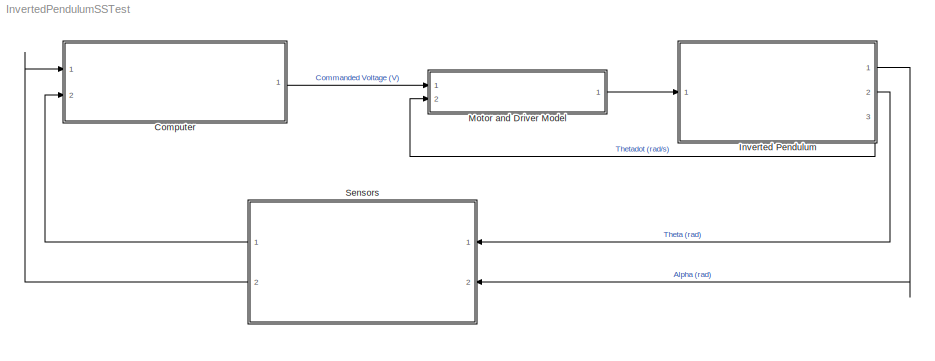
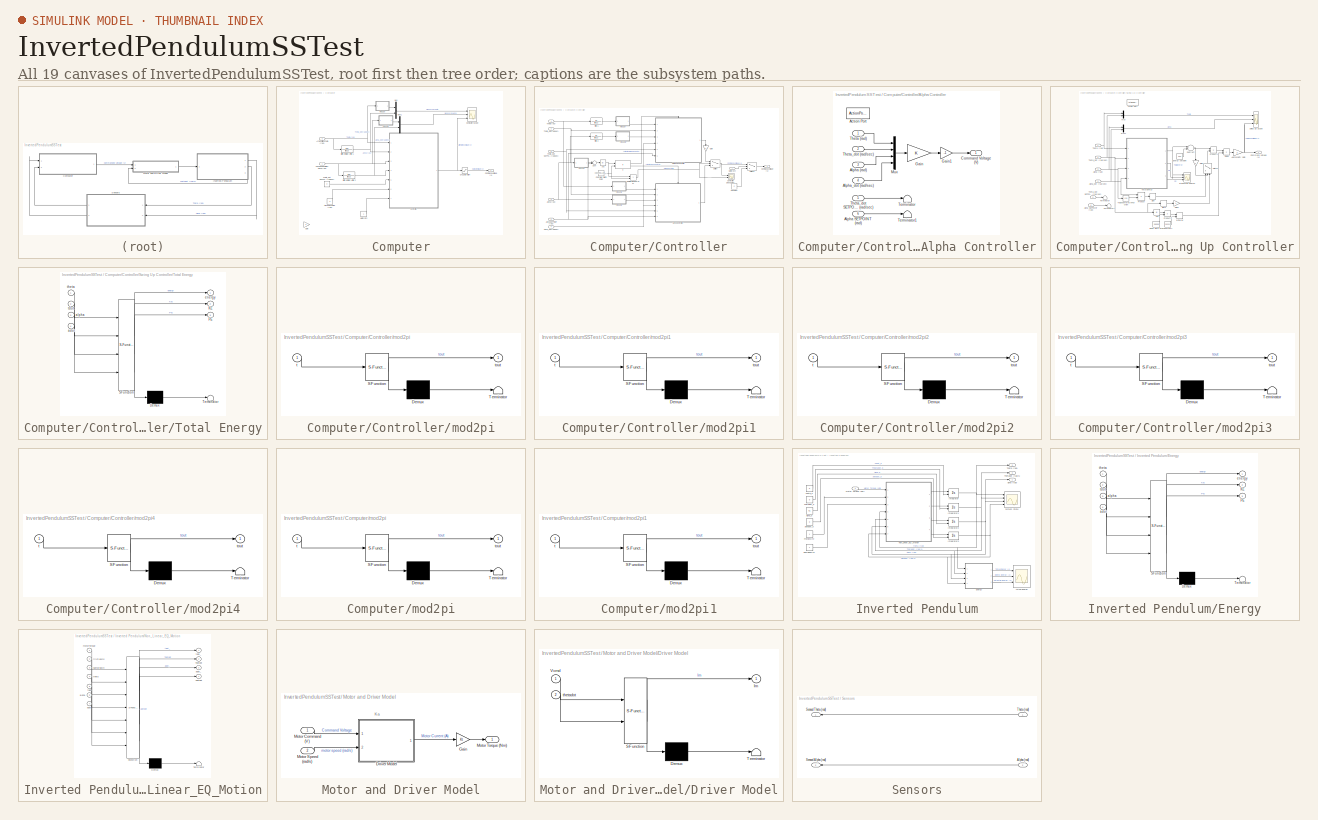
[diagram: thumbnail index - all 19 canvases of the model, root first then tree order]
MODEL InvertedPendulumSSTest
KIND model
CONFIG PreLoadFcn = StateSpacePrelimv2
BLOCK [SubSystem] Computer
  FunctionWithSeparateData = off
  MaskHideContents = off
  MinAlgLoopOccurrences = off
  Opaque = off
  Ports = [2, 1]
  PropExecContextOutsideSubsystem = off
  RTWSystemCode = Auto
  RequestExecContextInheritance = off
  SID = 1
BLOCK [Constant] Computer/Alpha SETPOINT (rad)
  SID = 41
  Value = 0
BLOCK [Inport] Computer/Arm Position// Theta (rad)
  IconDisplay = Port number
  Port = 2
  SID = 2
BLOCK [Outport] Computer/Command Voltage (V)
  IconDisplay = Port number
  SID = 3
BLOCK [Scope] Computer/Computer Scope
  DataFormat = StructureWithTime
  Floating = off
  LimitDataPoints = off
  NumInputPorts = 3
  Ports = [3]
  SID = 172
  SampleTime = 0
  SaveName = ScopeData3
  YMax = 17.5~325~900000
  YMin = -10~-25~-800000
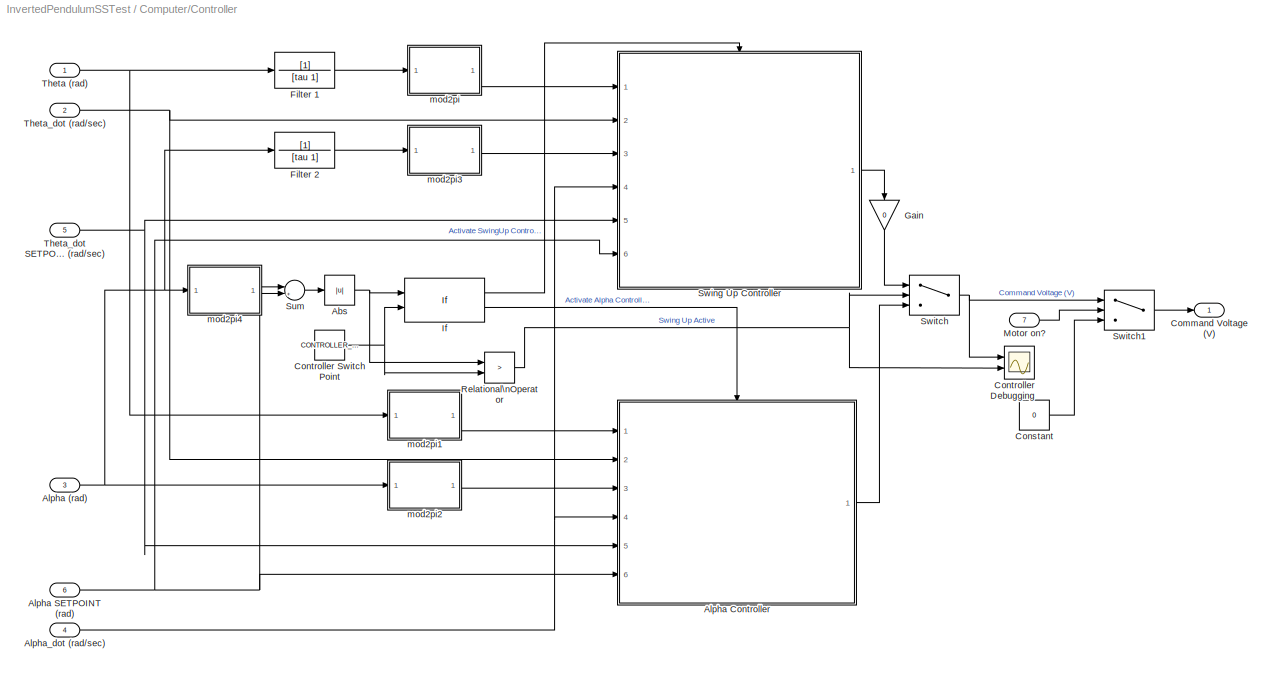
BLOCK [SubSystem] Computer/Controller
  FunctionWithSeparateData = off
  MaskHideContents = off
  MinAlgLoopOccurrences = off
  Opaque = off
  Ports = [7, 1]
  PropExecContextOutsideSubsystem = off
  RTWSystemCode = Auto
  RequestExecContextInheritance = off
  SID = 29
BLOCK [Abs] Computer/Controller/Abs
  SID = 299
  SaturateOnIntegerOverflow = off
BLOCK [Inport] Computer/Controller/Alpha (rad)
  IconDisplay = Port number
  Port = 3
  SID = 33
BLOCK [SubSystem] Computer/Controller/Alpha Controller
  FunctionWithSeparateData = off
  MaskHideContents = off
  MinAlgLoopOccurrences = off
  Opaque = off
  Ports = [6, 1, 0, 0, 0, 0, 0, 1]
  PropExecContextOutsideSubsystem = off
  RTWSystemCode = Auto
  RequestExecContextInheritance = off
  SID = 54
  TreatAsAtomicUnit = on
BLOCK [ActionPort] Computer/Controller/Alpha Controller/Action Port
  ActionType = else
  SID = 56
BLOCK [Inport] Computer/Controller/Alpha Controller/Alpha (rad)
  IconDisplay = Port number
  Port = 3
  SID = 73
BLOCK [Inport] Computer/Controller/Alpha Controller/Alpha SETPOINT (rad)
  IconDisplay = Port number
  Port = 6
  SID = 76
BLOCK [Inport] Computer/Controller/Alpha Controller/Alpha_dot (rad//sec)
  IconDisplay = Port number
  Port = 4
  SID = 74
BLOCK [Outport] Computer/Controller/Alpha Controller/Command Voltage (V)
  IconDisplay = Port number
  SID = 77
BLOCK [Gain] Computer/Controller/Alpha Controller/Gain
  Gain = K
  Multiplication = Matrix(K*u)
  OutDataTypeStr = Inherit: Inherit via internal rule
  ParamDataTypeStr = Inherit: Inherit via internal rule
  SID = 155
  SaturateOnIntegerOverflow = off
BLOCK [Gain] Computer/Controller/Alpha Controller/Gain1
  Gain = -1
  OutDataTypeStr = Inherit: Inherit via internal rule
  ParamDataTypeStr = Inherit: Inherit via internal rule
  SID = 156
  SaturateOnIntegerOverflow = off
BLOCK [Mux] Computer/Controller/Alpha Controller/Mux
  Ports = [4, 1]
  SID = 154
BLOCK [Terminator] Computer/Controller/Alpha Controller/Terminator
  SID = 191
BLOCK [Terminator] Computer/Controller/Alpha Controller/Terminator1
  SID = 192
BLOCK [Inport] Computer/Controller/Alpha Controller/Theta (rad)
  IconDisplay = Port number
  SID = 71
BLOCK [Inport] Computer/Controller/Alpha Controller/Theta_dot (rad//sec)
  IconDisplay = Port number
  Port = 2
  SID = 72
BLOCK [Inport] Computer/Controller/Alpha Controller/Theta_dot SETPOINT (rad//sec)
  IconDisplay = Port number
  Port = 5
  SID = 75
BLOCK [Inport] Computer/Controller/Alpha SETPOINT (rad)
  IconDisplay = Port number
  Port = 6
  SID = 39
BLOCK [Inport] Computer/Controller/Alpha_dot (rad//sec)
  IconDisplay = Port number
  Port = 4
  SID = 34
BLOCK [Outport] Computer/Controller/Command Voltage (V)
  IconDisplay = Port number
  SID = 31
BLOCK [Constant] Computer/Controller/Constant
  SID = 219
  Value = 0
BLOCK [Scope] Computer/Controller/Controller Debugging
  DataFormat = StructureWithTime
  Floating = off
  LimitDataPoints = off
  NumInputPorts = 2
  Ports = [2]
  SID = 198
  SampleTime = 0
  SaveName = ScopeData2
  YMax = 5~5
  YMin = -5~-5
BLOCK [Constant] Computer/Controller/Controller Switch Point
  SID = 87
  Value = CONTROLLER_SWITCH_POINT
BLOCK [TransferFcn] Computer/Controller/Filter 1
  Denominator = [tau 1]
  SID = 272
BLOCK [TransferFcn] Computer/Controller/Filter 2
  Denominator = [tau 1]
  SID = 273
BLOCK [Gain] Computer/Controller/Gain
  Gain = 0
  OutDataTypeStr = Inherit: Inherit via internal rule
  ParamDataTypeStr = Inherit: Inherit via internal rule
  SID = 302
  SaturateOnIntegerOverflow = off
BLOCK [If] Computer/Controller/If
  IfExpression = u1 > u2
  NumInputs = 2
  Ports = [2, 2]
  SID = 53
BLOCK [Inport] Computer/Controller/Motor on?
  IconDisplay = Port number
  Port = 7
  SID = 218
BLOCK [RelationalOperator] Computer/Controller/Relational\nOperator
  InputSameDT = off
  Operator = >
  OutDataTypeStr = boolean
  Ports = [2, 1]
  SID = 197
BLOCK [Sum] Computer/Controller/Sum
  IconShape = round
  InputSameDT = off
  Inputs = |+-
  OutDataTypeStr = Inherit: Inherit via internal rule
  Ports = [2, 1]
  SID = 88
  SaturateOnIntegerOverflow = off
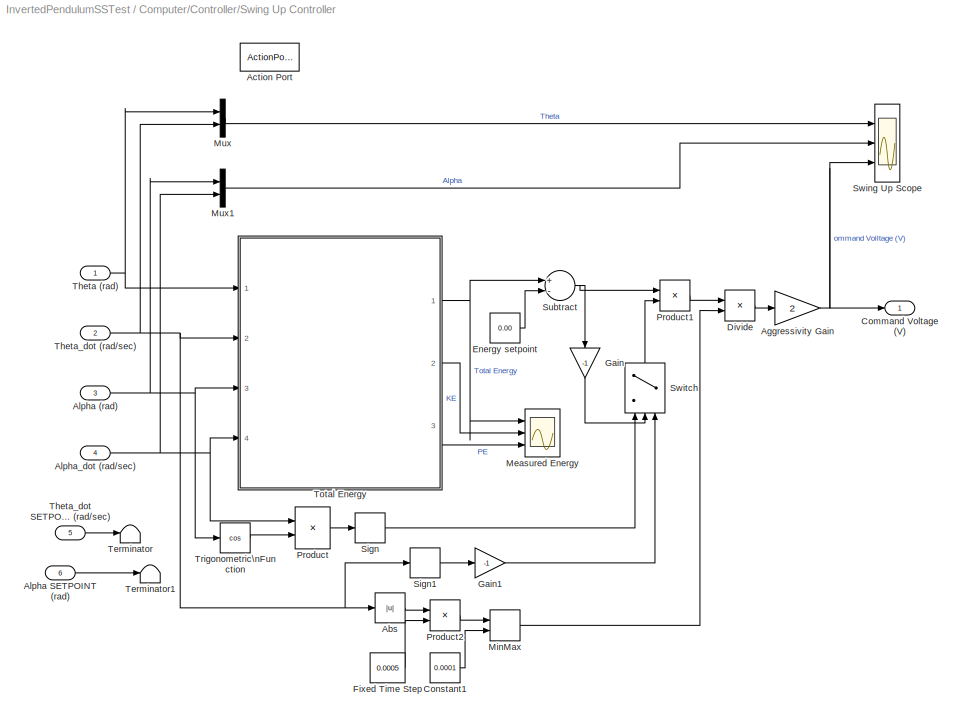
BLOCK [SubSystem] Computer/Controller/Swing Up Controller
  FunctionWithSeparateData = off
  MaskHideContents = off
  MinAlgLoopOccurrences = off
  Opaque = off
  Ports = [6, 1, 0, 0, 0, 0, 0, 1]
  PropExecContextOutsideSubsystem = off
  RTWSystemCode = Auto
  RequestExecContextInheritance = off
  SID = 78
  TreatAsAtomicUnit = on
BLOCK [Abs] Computer/Controller/Swing Up Controller/Abs
  SID = 223
  SaturateOnIntegerOverflow = off
BLOCK [ActionPort] Computer/Controller/Swing Up Controller/Action Port
  ActionType = then
  SID = 85
BLOCK [Gain] Computer/Controller/Swing Up Controller/Aggressivity Gain
  Gain = 2
  OutDataTypeStr = Inherit: Inherit via internal rule
  ParamDataTypeStr = Inherit: Inherit via internal rule
  SID = 164
  SaturateOnIntegerOverflow = off
BLOCK [Inport] Computer/Controller/Swing Up Controller/Alpha (rad)
  IconDisplay = Port number
  Port = 3
  SID = 81
BLOCK [Inport] Computer/Controller/Swing Up Controller/Alpha SETPOINT (rad)
  IconDisplay = Port number
  Port = 6
  SID = 84
BLOCK [Inport] Computer/Controller/Swing Up Controller/Alpha_dot (rad//sec)
  IconDisplay = Port number
  Port = 4
  SID = 82
BLOCK [Outport] Computer/Controller/Swing Up Controller/Command Voltage (V)
  IconDisplay = Port number
  SID = 86
BLOCK [Constant] Computer/Controller/Swing Up Controller/Constant1
  SID = 227
  Value = 0.0001
BLOCK [Product] Computer/Controller/Swing Up Controller/Divide
  InputSameDT = off
  Inputs = */
  OutDataTypeStr = Inherit: Inherit via internal rule
  Ports = [2, 1]
  RndMeth = Floor
  SID = 229
  SaturateOnIntegerOverflow = off
BLOCK [Constant] Computer/Controller/Swing Up Controller/Energy setpoint
  SID = 158
  Value = 0.00
BLOCK [Constant] Computer/Controller/Swing Up Controller/Fixed Time Step
  SID = 225
  Value = 0.0005
BLOCK [Gain] Computer/Controller/Swing Up Controller/Gain
  Gain = -1
  OutDataTypeStr = Inherit: Inherit via internal rule
  ParamDataTypeStr = Inherit: Inherit via internal rule
  SID = 295
  SaturateOnIntegerOverflow = off
BLOCK [Gain] Computer/Controller/Swing Up Controller/Gain1
  Gain = -1
  OutDataTypeStr = Inherit: Inherit via internal rule
  ParamDataTypeStr = Inherit: Inherit via internal rule
  SID = 297
  SaturateOnIntegerOverflow = off
BLOCK [Scope] Computer/Controller/Swing Up Controller/Measured Energy
  DataFormat = StructureWithTime
  Floating = off
  NumInputPorts = 3
  Ports = [3]
  SID = 215
  SampleTime = 0
  SaveName = Measured_Energy
  TimeRange = 10
  YMax = -0.035~0.1~-0.02000000000000002
  YMin = -0.065~0~-0.14
BLOCK [MinMax] Computer/Controller/Swing Up Controller/MinMax
  Function = max
  InputSameDT = off
  Inputs = 2
  Ports = [2, 1]
  SID = 226
  SaturateOnIntegerOverflow = off
BLOCK [Mux] Computer/Controller/Swing Up Controller/Mux
  DisplayOption = bar
  Inputs = 2
  Ports = [2, 1]
  SID = 186
BLOCK [Mux] Computer/Controller/Swing Up Controller/Mux1
  DisplayOption = bar
  Inputs = 2
  Ports = [2, 1]
  SID = 187
BLOCK [Product] Computer/Controller/Swing Up Controller/Product
  InputSameDT = off
  OutDataTypeStr = Inherit: Inherit via internal rule
  Ports = [2, 1]
  SID = 163
  SaturateOnIntegerOverflow = off
BLOCK [Product] Computer/Controller/Swing Up Controller/Product1
  InputSameDT = off
  OutDataTypeStr = Inherit: Inherit via internal rule
  Ports = [2, 1]
  SID = 167
  SaturateOnIntegerOverflow = off
BLOCK [Product] Computer/Controller/Swing Up Controller/Product2
  InputSameDT = off
  OutDataTypeStr = Inherit: Inherit via internal rule
  Ports = [2, 1]
  SID = 224
  SaturateOnIntegerOverflow = off
BLOCK [Signum] Computer/Controller/Swing Up Controller/Sign
  SID = 161
BLOCK [Signum] Computer/Controller/Swing Up Controller/Sign1
  SID = 296
BLOCK [Sum] Computer/Controller/Swing Up Controller/Subtract
  InputSameDT = off
  Inputs = +-
  OutDataTypeStr = Inherit: Inherit via internal rule
  Ports = [2, 1]
  SID = 165
  SaturateOnIntegerOverflow = off
BLOCK [Scope] Computer/Controller/Swing Up Controller/Swing Up Scope
  DataFormat = StructureWithTime
  Floating = off
  LimitDataPoints = off
  NumInputPorts = 3
  Ports = [3]
  SID = 173
  SampleTime = 0
  SaveName = ScopeData4
  TimeRange = 5
  YMax = 5~4~15
  YMin = -15~-4~-15
BLOCK [Switch] Computer/Controller/Swing Up Controller/Switch
  Criteria = u2 > Threshold
  InputSameDT = off
  SID = 293
  SaturateOnIntegerOverflow = off
BLOCK [Terminator] Computer/Controller/Swing Up Controller/Terminator
  SID = 193
BLOCK [Terminator] Computer/Controller/Swing Up Controller/Terminator1
  SID = 194
BLOCK [Inport] Computer/Controller/Swing Up Controller/Theta (rad)
  IconDisplay = Port number
  SID = 79
BLOCK [Inport] Computer/Controller/Swing Up Controller/Theta_dot (rad//sec)
  IconDisplay = Port number
  Port = 2
  SID = 80
BLOCK [Inport] Computer/Controller/Swing Up Controller/Theta_dot SETPOINT (rad//sec)
  IconDisplay = Port number
  Port = 5
  SID = 83
BLOCK [SubSystem] Computer/Controller/Swing Up Controller/Total Energy
  ErrorFcn = Stateflow.Translate.translate
  FunctionWithSeparateData = off
  MaskDescription = Embedded MATLAB block
  MaskDisplay = bgColor = Simulink.Root.ColorString2Rgb(get_param(gcbh, 'BackgroundColor')); image(imread('private/eml_membrane_16.png','png','BackgroundColor',bgColor(1:3)),'center'); disp([10 10 'totalEnergy']);
  MaskHideContents = off
  MaskIconFrame = on
  MaskIconOpaque = off
  MaskIconRotate = none
  MaskIconUnits = normalized
  MaskPortRotate = default
  MaskSelfModifiable = on
  MaskType = Stateflow
  MinAlgLoopOccurrences = off
  Opaque = off
  PermitHierarchicalResolution = ExplicitOnly
  Ports = [4, 3]
  PropExecContextOutsideSubsystem = off
  RTWSystemCode = Auto
  RequestExecContextInheritance = off
  SID = 160
  TreatAsAtomicUnit = on
BLOCK [Demux] Computer/Controller/Swing Up Controller/Total Energy/ Demux 
  Outputs = 1
  Ports = [1, 1]
  SID = 160::15
BLOCK [S-Function] Computer/Controller/Swing Up Controller/Total Energy/ SFunction 
  EnableBusSupport = on
  FunctionName = sf_sfun
  Parameters = I1zt,Ix2,Ixz2,Iy2,Iz2,g,l1,l2c,m2
  PortCounts = [4 4]
  Ports = [4, 4]
  SID = 160::14
  Tag = Stateflow S-Function InvertedPendulumSSTest 3
BLOCK [Terminator] Computer/Controller/Swing Up Controller/Total Energy/ Terminator 
  SID = 160::17
BLOCK [Outport] Computer/Controller/Swing Up Controller/Total Energy/KE
  IconDisplay = Port number
  Port = 2
  SID = 160::35
BLOCK [Outport] Computer/Controller/Swing Up Controller/Total Energy/PE
  IconDisplay = Port number
  Port = 3
  SID = 160::36
BLOCK [Inport] Computer/Controller/Swing Up Controller/Total Energy/adot
  IconDisplay = Port number
  Port = 4
  SID = 160::21
BLOCK [Inport] Computer/Controller/Swing Up Controller/Total Energy/alpha
  IconDisplay = Port number
  Port = 3
  SID = 160::20
BLOCK [Outport] Computer/Controller/Swing Up Controller/Total Energy/energy
  IconDisplay = Port number
  SID = 160::5
BLOCK [Inport] Computer/Controller/Swing Up Controller/Total Energy/tdot
  IconDisplay = Port number
  Port = 2
  SID = 160::19
BLOCK [Inport] Computer/Controller/Swing Up Controller/Total Energy/theta
  IconDisplay = Port number
  SID = 160::25
BLOCK [Trigonometry] Computer/Controller/Swing Up Controller/Trigonometric\nFunction
  Operator = cos
  Ports = [1, 1]
  SID = 162
BLOCK [Switch] Computer/Controller/Switch
  Criteria = u2 > Threshold
  InputSameDT = off
  SID = 195
  SaturateOnIntegerOverflow = off
BLOCK [Switch] Computer/Controller/Switch1
  Criteria = u2 > Threshold
  InputSameDT = off
  SID = 217
  SaturateOnIntegerOverflow = off
BLOCK [Inport] Computer/Controller/Theta (rad)
  IconDisplay = Port number
  SID = 30
BLOCK [Inport] Computer/Controller/Theta_dot (rad//sec)
  IconDisplay = Port number
  Port = 2
  SID = 32
BLOCK [Inport] Computer/Controller/Theta_dot SETPOINT (rad//sec)
  IconDisplay = Port number
  Port = 5
  SID = 38
BLOCK [SubSystem] Computer/Controller/mod2pi
  ErrorFcn = Stateflow.Translate.translate
  FunctionWithSeparateData = off
  MaskDescription = Embedded MATLAB block
  MaskDisplay = bgColor = Simulink.Root.ColorString2Rgb(get_param(gcbh, 'BackgroundColor')); image(imread('private/eml_membrane_16.png','png','BackgroundColor',bgColor(1:3)),'center'); disp([10 10 'mod2pi']);  <repeated x7 — deduplicated; at blocks: mod2pi, mod2pi1, mod2pi2, mod2pi3, mod2pi4>
  MaskHideContents = off
  MaskIconFrame = on
  MaskIconOpaque = off
  MaskIconRotate = none
  MaskIconUnits = normalized
  MaskPortRotate = default
  MaskSelfModifiable = on
  MaskType = Stateflow
  MinAlgLoopOccurrences = off
  Opaque = off
  PermitHierarchicalResolution = ExplicitOnly
  Ports = [1, 1]
  PropExecContextOutsideSubsystem = off
  RTWSystemCode = Auto
  RequestExecContextInheritance = off
  SID = 268
  TreatAsAtomicUnit = on
BLOCK [Demux] Computer/Controller/mod2pi/ Demux 
  Outputs = 1
  Ports = [1, 1]
  SID = 268::15
BLOCK [S-Function] Computer/Controller/mod2pi/ SFunction 
  EnableBusSupport = on
  FunctionName = sf_sfun
  PortCounts = [1 2]
  Ports = [1, 2]
  SID = 268::14
  Tag = Stateflow S-Function InvertedPendulumSSTest 7
BLOCK [Terminator] Computer/Controller/mod2pi/ Terminator 
  SID = 268::17
BLOCK [Inport] Computer/Controller/mod2pi/t
  IconDisplay = Port number
  SID = 268::1
BLOCK [Outport] Computer/Controller/mod2pi/tout
  IconDisplay = Port number
  SID = 268::5
BLOCK [SubSystem] Computer/Controller/mod2pi1
  ErrorFcn = Stateflow.Translate.translate
  FunctionWithSeparateData = off
  MaskDescription = Embedded MATLAB block
  MaskHideContents = off
  MaskIconFrame = on
  MaskIconOpaque = off
  MaskIconRotate = none
  MaskIconUnits = normalized
  MaskPortRotate = default
  MaskSelfModifiable = on
  MaskType = Stateflow
  MinAlgLoopOccurrences = off
  Opaque = off
  PermitHierarchicalResolution = ExplicitOnly
  Ports = [1, 1]
  PropExecContextOutsideSubsystem = off
  RTWSystemCode = Auto
  RequestExecContextInheritance = off
  SID = 269
  TreatAsAtomicUnit = on
BLOCK [Demux] Computer/Controller/mod2pi1/ Demux 
  Outputs = 1
  Ports = [1, 1]
  SID = 269::15
BLOCK [S-Function] Computer/Controller/mod2pi1/ SFunction 
  EnableBusSupport = on
  FunctionName = sf_sfun
  PortCounts = [1 2]
  Ports = [1, 2]
  SID = 269::14
  Tag = Stateflow S-Function InvertedPendulumSSTest 5
BLOCK [Terminator] Computer/Controller/mod2pi1/ Terminator 
  SID = 269::17
BLOCK [Inport] Computer/Controller/mod2pi1/t
  IconDisplay = Port number
  SID = 269::1
BLOCK [Outport] Computer/Controller/mod2pi1/tout
  IconDisplay = Port number
  SID = 269::5
BLOCK [SubSystem] Computer/Controller/mod2pi2
  ErrorFcn = Stateflow.Translate.translate
  FunctionWithSeparateData = off
  MaskDescription = Embedded MATLAB block
  MaskHideContents = off
  MaskIconFrame = on
  MaskIconOpaque = off
  MaskIconRotate = none
  MaskIconUnits = normalized
  MaskPortRotate = default
  MaskSelfModifiable = on
  MaskType = Stateflow
  MinAlgLoopOccurrences = off
  Opaque = off
  PermitHierarchicalResolution = ExplicitOnly
  Ports = [1, 1]
  PropExecContextOutsideSubsystem = off
  RTWSystemCode = Auto
  RequestExecContextInheritance = off
  SID = 270
  TreatAsAtomicUnit = on
BLOCK [Demux] Computer/Controller/mod2pi2/ Demux 
  Outputs = 1
  Ports = [1, 1]
  SID = 270::15
BLOCK [S-Function] Computer/Controller/mod2pi2/ SFunction 
  EnableBusSupport = on
  FunctionName = sf_sfun
  PortCounts = [1 2]
  Ports = [1, 2]
  SID = 270::14
  Tag = Stateflow S-Function InvertedPendulumSSTest 6
BLOCK [Terminator] Computer/Controller/mod2pi2/ Terminator 
  SID = 270::17
BLOCK [Inport] Computer/Controller/mod2pi2/t
  IconDisplay = Port number
  SID = 270::1
BLOCK [Outport] Computer/Controller/mod2pi2/tout
  IconDisplay = Port number
  SID = 270::5
BLOCK [SubSystem] Computer/Controller/mod2pi3
  ErrorFcn = Stateflow.Translate.translate
  FunctionWithSeparateData = off
  MaskDescription = Embedded MATLAB block
  MaskHideContents = off
  MaskIconFrame = on
  MaskIconOpaque = off
  MaskIconRotate = none
  MaskIconUnits = normalized
  MaskPortRotate = default
  MaskSelfModifiable = on
  MaskType = Stateflow
  MinAlgLoopOccurrences = off
  Opaque = off
  PermitHierarchicalResolution = ExplicitOnly
  Ports = [1, 1]
  PropExecContextOutsideSubsystem = off
  RTWSystemCode = Auto
  RequestExecContextInheritance = off
  SID = 271
  TreatAsAtomicUnit = on
BLOCK [Demux] Computer/Controller/mod2pi3/ Demux 
  Outputs = 1
  Ports = [1, 1]
  SID = 271::15
BLOCK [S-Function] Computer/Controller/mod2pi3/ SFunction 
  EnableBusSupport = on
  FunctionName = sf_sfun
  PortCounts = [1 2]
  Ports = [1, 2]
  SID = 271::14
  Tag = Stateflow S-Function InvertedPendulumSSTest 9
BLOCK [Terminator] Computer/Controller/mod2pi3/ Terminator 
  SID = 271::17
BLOCK [Inport] Computer/Controller/mod2pi3/t
  IconDisplay = Port number
  SID = 271::1
BLOCK [Outport] Computer/Controller/mod2pi3/tout
  IconDisplay = Port number
  SID = 271::5
BLOCK [SubSystem] Computer/Controller/mod2pi4
  ErrorFcn = Stateflow.Translate.translate
  FunctionWithSeparateData = off
  MaskDescription = Embedded MATLAB block
  MaskHideContents = off
  MaskIconFrame = on
  MaskIconOpaque = off
  MaskIconRotate = none
  MaskIconUnits = normalized
  MaskPortRotate = default
  MaskSelfModifiable = on
  MaskType = Stateflow
  MinAlgLoopOccurrences = off
  Opaque = off
  PermitHierarchicalResolution = ExplicitOnly
  Ports = [1, 1]
  PropExecContextOutsideSubsystem = off
  RTWSystemCode = Auto
  RequestExecContextInheritance = off
  SID = 300
  TreatAsAtomicUnit = on
BLOCK [Demux] Computer/Controller/mod2pi4/ Demux 
  Outputs = 1
  Ports = [1, 1]
  SID = 300::15
BLOCK [S-Function] Computer/Controller/mod2pi4/ SFunction 
  EnableBusSupport = on
  FunctionName = sf_sfun
  PortCounts = [1 2]
  Ports = [1, 2]
  SID = 300::14
  Tag = Stateflow S-Function InvertedPendulumSSTest 11
BLOCK [Terminator] Computer/Controller/mod2pi4/ Terminator 
  SID = 300::17
BLOCK [Inport] Computer/Controller/mod2pi4/t
  IconDisplay = Port number
  SID = 300::1
BLOCK [Outport] Computer/Controller/mod2pi4/tout
  IconDisplay = Port number
  SID = 300::5
BLOCK [Saturate] Computer/DAC Saturation
  InputPortMap = u0
  LowerLimit = -10
  Ports = [1, 1]
  SID = 28
  UpperLimit = 10
BLOCK [TransferFcn] Computer/Differentiator + Filter 1
  Denominator = [tau 1]
  Numerator = [1 0]
  SID = 267
BLOCK [TransferFcn] Computer/Differentiator + Filter 2
  Denominator = [tau 1]
  Numerator = [1 0]
  SID = 266
BLOCK [Gain] Computer/Gain
  OutDataTypeStr = Inherit: Inherit via internal rule
  ParamDataTypeStr = Inherit: Inherit via internal rule
  SID = 301
  SaturateOnIntegerOverflow = off
BLOCK [Constant] Computer/Motor On?
  SID = 220
BLOCK [Mux] Computer/Mux
  DisplayOption = bar
  Inputs = 2
  Ports = [2, 1]
  SID = 200
BLOCK [Mux] Computer/Mux1
  DisplayOption = bar
  Inputs = 2
  Ports = [2, 1]
  SID = 201
BLOCK [Inport] Computer/Pendulum Position// Alpha (rad)
  IconDisplay = Port number
  SID = 4
BLOCK [Constant] Computer/Theta_dot SETPOINT (rad//sec)
  SID = 40
  Value = 0
BLOCK [SubSystem] Computer/mod2pi
  ErrorFcn = Stateflow.Translate.translate
  FunctionWithSeparateData = off
  MaskDescription = Embedded MATLAB block
  MaskHideContents = off
  MaskIconFrame = on
  MaskIconOpaque = off
  MaskIconRotate = none
  MaskIconUnits = normalized
  MaskPortRotate = default
  MaskSelfModifiable = on
  MaskType = Stateflow
  MinAlgLoopOccurrences = off
  Opaque = off
  PermitHierarchicalResolution = ExplicitOnly
  Ports = [1, 1]
  PropExecContextOutsideSubsystem = off
  RTWSystemCode = Auto
  RequestExecContextInheritance = off
  SID = 275
  TreatAsAtomicUnit = on
BLOCK [Demux] Computer/mod2pi/ Demux 
  Outputs = 1
  Ports = [1, 1]
  SID = 275::15
BLOCK [S-Function] Computer/mod2pi/ SFunction 
  EnableBusSupport = on
  FunctionName = sf_sfun
  PortCounts = [1 2]
  Ports = [1, 2]
  SID = 275::14
  Tag = Stateflow S-Function InvertedPendulumSSTest 8
BLOCK [Terminator] Computer/mod2pi/ Terminator 
  SID = 275::17
BLOCK [Inport] Computer/mod2pi/t
  IconDisplay = Port number
  SID = 275::1
BLOCK [Outport] Computer/mod2pi/tout
  IconDisplay = Port number
  SID = 275::5
BLOCK [SubSystem] Computer/mod2pi1
  ErrorFcn = Stateflow.Translate.translate
  FunctionWithSeparateData = off
  MaskDescription = Embedded MATLAB block
  MaskHideContents = off
  MaskIconFrame = on
  MaskIconOpaque = off
  MaskIconRotate = none
  MaskIconUnits = normalized
  MaskPortRotate = default
  MaskSelfModifiable = on
  MaskType = Stateflow
  MinAlgLoopOccurrences = off
  Opaque = off
  PermitHierarchicalResolution = ExplicitOnly
  Ports = [1, 1]
  PropExecContextOutsideSubsystem = off
  RTWSystemCode = Auto
  RequestExecContextInheritance = off
  SID = 276
  TreatAsAtomicUnit = on
BLOCK [Demux] Computer/mod2pi1/ Demux 
  Outputs = 1
  Ports = [1, 1]
  SID = 276::15
BLOCK [S-Function] Computer/mod2pi1/ SFunction 
  EnableBusSupport = on
  FunctionName = sf_sfun
  PortCounts = [1 2]
  Ports = [1, 2]
  SID = 276::14
  Tag = Stateflow S-Function InvertedPendulumSSTest 10
BLOCK [Terminator] Computer/mod2pi1/ Terminator 
  SID = 276::17
BLOCK [Inport] Computer/mod2pi1/t
  IconDisplay = Port number
  SID = 276::1
BLOCK [Outport] Computer/mod2pi1/tout
  IconDisplay = Port number
  SID = 276::5
BLOCK [SubSystem] Inverted Pendulum
  FunctionWithSeparateData = off
  MaskHideContents = off
  MinAlgLoopOccurrences = off
  Opaque = off
  Ports = [1, 3]
  PropExecContextOutsideSubsystem = off
  RTWSystemCode = Auto
  RequestExecContextInheritance = off
  SID = 143
BLOCK [Scope] Inverted Pendulum/Actual Energy
  DataFormat = StructureWithTime
  Floating = off
  LimitDataPoints = off
  NumInputPorts = 3
  Ports = [3]
  SID = 214
  SampleTime = 0
  SaveName = Actual_Energy
  TimeRange = 5
  YMax = 0.1~0.175~1.38778e-17
  YMin = -0.07~0~-0.14
BLOCK [Outport] Inverted Pendulum/Alpha (rad)
  IconDisplay = Port number
  SID = 146
BLOCK [Constant] Inverted Pendulum/Alpha_0
  SID = 207
  Value = 0.1
BLOCK [Constant] Inverted Pendulum/Alphadot_0
  SID = 208
  Value = 0
BLOCK [Constant] Inverted Pendulum/DampingOn?
  SID = 222
BLOCK [SubSystem] Inverted Pendulum/Energy
  ErrorFcn = Stateflow.Translate.translate
  FunctionWithSeparateData = off
  MaskDescription = Embedded MATLAB block
  MaskDisplay = bgColor = Simulink.Root.ColorString2Rgb(get_param(gcbh, 'BackgroundColor')); image(imread('private/eml_membrane_16.png','png','BackgroundColor',bgColor(1:3)),'center'); disp([10 10 'totalEnergy']);
  MaskHideContents = off
  MaskIconFrame = on
  MaskIconOpaque = off
  MaskIconRotate = none
  MaskIconUnits = normalized
  MaskPortRotate = default
  MaskSelfModifiable = on
  MaskType = Stateflow
  MinAlgLoopOccurrences = off
  Opaque = off
  PermitHierarchicalResolution = ExplicitOnly
  Ports = [4, 3]
  PropExecContextOutsideSubsystem = off
  RTWSystemCode = Auto
  RequestExecContextInheritance = off
  SID = 213
  TreatAsAtomicUnit = on
BLOCK [Demux] Inverted Pendulum/Energy/ Demux 
  Outputs = 1
  Ports = [1, 1]
  SID = 213::15
BLOCK [S-Function] Inverted Pendulum/Energy/ SFunction 
  EnableBusSupport = on
  FunctionName = sf_sfun
  Parameters = I1zt,Ix2,Ixz2,Iy2,Iz2,g,l1,l2c,m2
  PortCounts = [4 4]
  Ports = [4, 4]
  SID = 213::14
  Tag = Stateflow S-Function InvertedPendulumSSTest 1
BLOCK [Terminator] Inverted Pendulum/Energy/ Terminator 
  SID = 213::17
BLOCK [Outport] Inverted Pendulum/Energy/KE
  IconDisplay = Port number
  Port = 2
  SID = 213::30
BLOCK [Outport] Inverted Pendulum/Energy/PE
  IconDisplay = Port number
  Port = 3
  SID = 213::31
BLOCK [Inport] Inverted Pendulum/Energy/adot
  IconDisplay = Port number
  Port = 4
  SID = 213::20
BLOCK [Inport] Inverted Pendulum/Energy/alpha
  IconDisplay = Port number
  Port = 3
  SID = 213::19
BLOCK [Outport] Inverted Pendulum/Energy/energy
  IconDisplay = Port number
  SID = 213::5
BLOCK [Inport] Inverted Pendulum/Energy/tdot
  IconDisplay = Port number
  Port = 2
  SID = 213::18
BLOCK [Inport] Inverted Pendulum/Energy/theta
  IconDisplay = Port number
  SID = 213::1
BLOCK [Constant] Inverted Pendulum/FrictionOn?
  SID = 221
BLOCK [Integrator] Inverted Pendulum/Integrator
  InitialConditionSource = external
  Ports = [2, 1]
  SID = 209
BLOCK [Integrator] Inverted Pendulum/Integrator1
  InitialConditionSource = external
  Ports = [2, 1]
  SID = 210
BLOCK [Integrator] Inverted Pendulum/Integrator2
  InitialConditionSource = external
  Ports = [2, 1]
  SID = 211
BLOCK [Integrator] Inverted Pendulum/Integrator3
  InitialConditionSource = external
  Ports = [2, 1]
  SID = 212
BLOCK [Inport] Inverted Pendulum/Motor Torque (Nm)
  IconDisplay = Port number
  SID = 144
BLOCK [SubSystem] Inverted Pendulum/Non_Linear_EQ_Motion
  ErrorFcn = Stateflow.Translate.translate
  FunctionWithSeparateData = off
  MaskDescription = Embedded MATLAB block
  MaskDisplay = bgColor = Simulink.Root.ColorString2Rgb(get_param(gcbh, 'BackgroundColor')); image(imread('private/eml_membrane_16.png','png','BackgroundColor',bgColor(1:3)),'center'); disp([10 10 'eqMotionLagrange']);
  MaskHideContents = off
  MaskIconFrame = on
  MaskIconOpaque = off
  MaskIconRotate = none
  MaskIconUnits = normalized
  MaskPortRotate = default
  MaskSelfModifiable = on
  MaskType = Stateflow
  MinAlgLoopOccurrences = off
  Opaque = off
  PermitHierarchicalResolution = ExplicitOnly
  Ports = [7, 4]
  PropExecContextOutsideSubsystem = off
  RTWSystemCode = Auto
  RequestExecContextInheritance = off
  SID = 148
  TreatAsAtomicUnit = on
BLOCK [Demux] Inverted Pendulum/Non_Linear_EQ_Motion/ Demux 
  Outputs = 1
  Ports = [1, 1]
  SID = 148::15
BLOCK [S-Function] Inverted Pendulum/Non_Linear_EQ_Motion/ SFunction 
  EnableBusSupport = on
  FunctionName = sf_sfun
  Parameters = I1zt,Ix2,Ixz2,Iy2,Iz2,Tca,Tctf,Tctr,ba,btf,btr,g,l1,l2c,m2
  PortCounts = [7 5]
  Ports = [7, 5]
  SID = 148::14
  Tag = Stateflow S-Function InvertedPendulumSSTest 2
BLOCK [Terminator] Inverted Pendulum/Non_Linear_EQ_Motion/ Terminator 
  SID = 148::17
BLOCK [Outport] Inverted Pendulum/Non_Linear_EQ_Motion/Adotdot
  IconDisplay = Port number
  Port = 4
  SID = 148::24
BLOCK [Outport] Inverted Pendulum/Non_Linear_EQ_Motion/Tdotdot
  IconDisplay = Port number
  Port = 2
  SID = 148::22
BLOCK [Inport] Inverted Pendulum/Non_Linear_EQ_Motion/adot
  IconDisplay = Port number
  Port = 7
  SID = 148::21
BLOCK [Outport] Inverted Pendulum/Non_Linear_EQ_Motion/adot_
  IconDisplay = Port number
  Port = 3
  SID = 148::23
BLOCK [Inport] Inverted Pendulum/Non_Linear_EQ_Motion/alpha
  IconDisplay = Port number
  Port = 6
  SID = 148::20
BLOCK [Inport] Inverted Pendulum/Non_Linear_EQ_Motion/dampingOn
  IconDisplay = Port number
  Port = 3
  SID = 148::42
BLOCK [Inport] Inverted Pendulum/Non_Linear_EQ_Motion/frictionOn
  IconDisplay = Port number
  Port = 2
  SID = 148::41
BLOCK [Inport] Inverted Pendulum/Non_Linear_EQ_Motion/motorTorque
  IconDisplay = Port number
  SID = 148::1
BLOCK [Inport] Inverted Pendulum/Non_Linear_EQ_Motion/tdot
  IconDisplay = Port number
  Port = 5
  SID = 148::19
BLOCK [Outport] Inverted Pendulum/Non_Linear_EQ_Motion/tdot_
  IconDisplay = Port number
  SID = 148::5
BLOCK [Inport] Inverted Pendulum/Non_Linear_EQ_Motion/theta
  IconDisplay = Port number
  Port = 4
  SID = 148::40
BLOCK [Scope] Inverted Pendulum/System State
  DataFormat = StructureWithTime
  Floating = off
  LimitDataPoints = off
  NumInputPorts = 4
  Ports = [4]
  SID = 202
  SampleTime = 0
  SaveName = NonLinearResponse
  SaveToWorkspace = on
  TimeRange = 10
  YMax = 4~20~5~20
  YMin = -1~-20~0~-20
BLOCK [Outport] Inverted Pendulum/Theta (rad)
  IconDisplay = Port number
  Port = 2
  SID = 145
BLOCK [Constant] Inverted Pendulum/Theta_0
  SID = 205
  Value = 0
BLOCK [Outport] Inverted Pendulum/Thetadot (rad//s)
  IconDisplay = Port number
  Port = 3
  SID = 239
BLOCK [Constant] Inverted Pendulum/Thetadot_0
  SID = 206
  Value = 0
BLOCK [SubSystem] Motor and Driver Model
  FunctionWithSeparateData = off
  MaskHideContents = off
  MinAlgLoopOccurrences = off
  Opaque = off
  Ports = [2, 1]
  PropExecContextOutsideSubsystem = off
  RTWSystemCode = Auto
  RequestExecContextInheritance = off
  SID = 232
BLOCK [SubSystem] Motor and Driver Model/Driver Model
  ErrorFcn = Stateflow.Translate.translate
  FunctionWithSeparateData = off
  MaskDescription = Embedded MATLAB block
  MaskDisplay = bgColor = Simulink.Root.ColorString2Rgb(get_param(gcbh, 'BackgroundColor')); image(imread('private/eml_membrane_16.png','png','BackgroundColor',bgColor(1:3)),'center'); disp([10 10 'saturation']);
  MaskHideContents = off
  MaskIconFrame = on
  MaskIconOpaque = off
  MaskIconRotate = none
  MaskIconUnits = normalized
  MaskPortRotate = default
  MaskSelfModifiable = on
  MaskType = Stateflow
  MinAlgLoopOccurrences = off
  Opaque = off
  PermitHierarchicalResolution = ExplicitOnly
  Ports = [2, 1]
  PropExecContextOutsideSubsystem = off
  RTWSystemCode = Auto
  RequestExecContextInheritance = off
  SID = 237
  TreatAsAtomicUnit = on
BLOCK [Demux] Motor and Driver Model/Driver Model/ Demux 
  Outputs = 1
  Ports = [1, 1]
  SID = 237::15
BLOCK [S-Function] Motor and Driver Model/Driver Model/ SFunction 
  EnableBusSupport = on
  FunctionName = sf_sfun
  Parameters = Ka,Kb,Rm,Vsupply
  PortCounts = [2 2]
  Ports = [2, 2]
  SID = 237::14
  Tag = Stateflow S-Function InvertedPendulumSSTest 4
BLOCK [Terminator] Motor and Driver Model/Driver Model/ Terminator 
  SID = 237::17
BLOCK [Outport] Motor and Driver Model/Driver Model/Im
  IconDisplay = Port number
  SID = 237::5
BLOCK [Inport] Motor and Driver Model/Driver Model/Vcmd
  IconDisplay = Port number
  SID = 237::1
BLOCK [Inport] Motor and Driver Model/Driver Model/thetadot
  IconDisplay = Port number
  Port = 2
  SID = 237::19
BLOCK [Gain] Motor and Driver Model/Gain
  Gain = Kt
  OutDataTypeStr = Inherit: Inherit via internal rule
  ParamDataTypeStr = Inherit: Inherit via internal rule
  SID = 235
  SaturateOnIntegerOverflow = off
BLOCK [Inport] Motor and Driver Model/Motor Command (V)
  IconDisplay = Port number
  SID = 233
BLOCK [Inport] Motor and Driver Model/Motor Speed (rad//s)
  IconDisplay = Port number
  Port = 2
  SID = 238
BLOCK [Outport] Motor and Driver Model/Motor Torque (Nm)
  IconDisplay = Port number
  SID = 234
BLOCK [SubSystem] Sensors
  FunctionWithSeparateData = off
  MaskHideContents = off
  MinAlgLoopOccurrences = off
  Opaque = off
  Ports = [2, 2]
  PropExecContextOutsideSubsystem = off
  RTWSystemCode = Auto
  RequestExecContextInheritance = off
  SID = 12
BLOCK [Inport] Sensors/Alpha (rad)
  IconDisplay = Port number
  Port = 2
  SID = 15
BLOCK [Outport] Sensors/Sensed Alpha (rad)
  IconDisplay = Port number
  Port = 2
  SID = 16
BLOCK [Outport] Sensors/Sensed Theta (rad)
  IconDisplay = Port number
  SID = 14
BLOCK [Inport] Sensors/Theta (rad)
  IconDisplay = Port number
  SID = 13
ANNOTATION Motor and Driver Model: Ka
LINE Computer/Alpha SETPOINT (rad):1 -> Computer/Controller:6
NET Computer/Arm Position// Theta (rad):1 -> Computer/Controller:1, Computer/Differentiator + Filter 1:1, Computer/mod2pi:1
NET Computer/Controller/Abs:1 -> Computer/Controller/If:1, Computer/Controller/Relational\nOperator:1
NET Computer/Controller/Alpha (rad):1 -> Computer/Controller/Filter 2:1, Computer/Controller/mod2pi2:1, Computer/Controller/mod2pi4:1
LINE Computer/Controller/Alpha Controller/Alpha (rad):1 -> Computer/Controller/Alpha Controller/Mux:3
LINE Computer/Controller/Alpha Controller/Alpha SETPOINT (rad):1 -> Computer/Controller/Alpha Controller/Terminator1:1
LINE Computer/Controller/Alpha Controller/Alpha_dot (rad//sec):1 -> Computer/Controller/Alpha Controller/Mux:4
LINE Computer/Controller/Alpha Controller/Gain1:1 -> Computer/Controller/Alpha Controller/Command Voltage (V):1
LINE Computer/Controller/Alpha Controller/Gain:1 -> Computer/Controller/Alpha Controller/Gain1:1
LINE Computer/Controller/Alpha Controller/Mux:1 -> Computer/Controller/Alpha Controller/Gain:1
LINE Computer/Controller/Alpha Controller/Theta (rad):1 -> Computer/Controller/Alpha Controller/Mux:1
LINE Computer/Controller/Alpha Controller/Theta_dot (rad//sec):1 -> Computer/Controller/Alpha Controller/Mux:2
LINE Computer/Controller/Alpha Controller/Theta_dot SETPOINT (rad//sec):1 -> Computer/Controller/Alpha Controller/Terminator:1
LINE Computer/Controller/Alpha Controller:1 -> Computer/Controller/Switch:3
NET Computer/Controller/Alpha SETPOINT (rad):1 -> Computer/Controller/Alpha Controller:6, Computer/Controller/Sum:2, Computer/Controller/Swing Up Controller:6
NET Computer/Controller/Alpha_dot (rad//sec):1 -> Computer/Controller/Alpha Controller:4, Computer/Controller/Swing Up Controller:4
LINE Computer/Controller/Constant:1 -> Computer/Controller/Switch1:3
NET Computer/Controller/Controller Switch Point:1 -> Computer/Controller/If:2, Computer/Controller/Relational\nOperator:2
LINE Computer/Controller/Filter 1:1 -> Computer/Controller/mod2pi:1
LINE Computer/Controller/Filter 2:1 -> Computer/Controller/mod2pi3:1
LINE Computer/Controller/Gain:1 -> Computer/Controller/Switch:1
LINE Computer/Controller/If:1 -> Computer/Controller/Swing Up Controller:ifaction
LINE Computer/Controller/If:2 -> Computer/Controller/Alpha Controller:ifaction
LINE Computer/Controller/Motor on?:1 -> Computer/Controller/Switch1:2
NET Computer/Controller/Relational\nOperator:1 -> Computer/Controller/Controller Debugging:2, Computer/Controller/Switch:2
LINE Computer/Controller/Sum:1 -> Computer/Controller/Abs:1
LINE Computer/Controller/Swing Up Controller/Abs:1 -> Computer/Controller/Swing Up Controller/Product2:1
NET Computer/Controller/Swing Up Controller/Aggressivity Gain:1 -> Computer/Controller/Swing Up Controller/Command Voltage (V):1, Computer/Controller/Swing Up Controller/Swing Up Scope:3
NET Computer/Controller/Swing Up Controller/Alpha (rad):1 -> Computer/Controller/Swing Up Controller/Mux1:1, Computer/Controller/Swing Up Controller/Total Energy:3, Computer/Controller/Swing Up Controller/Trigonometric\nFunction:1
LINE Computer/Controller/Swing Up Controller/Alpha SETPOINT (rad):1 -> Computer/Controller/Swing Up Controller/Terminator1:1
NET Computer/Controller/Swing Up Controller/Alpha_dot (rad//sec):1 -> Computer/Controller/Swing Up Controller/Mux1:2, Computer/Controller/Swing Up Controller/Product:1, Computer/Controller/Swing Up Controller/Total Energy:4
LINE Computer/Controller/Swing Up Controller/Constant1:1 -> Computer/Controller/Swing Up Controller/MinMax:2
LINE Computer/Controller/Swing Up Controller/Divide:1 -> Computer/Controller/Swing Up Controller/Aggressivity Gain:1
LINE Computer/Controller/Swing Up Controller/Energy setpoint:1 -> Computer/Controller/Swing Up Controller/Subtract:2
LINE Computer/Controller/Swing Up Controller/Fixed Time Step:1 -> Computer/Controller/Swing Up Controller/Product2:2
LINE Computer/Controller/Swing Up Controller/Gain1:1 -> Computer/Controller/Swing Up Controller/Switch:3
LINE Computer/Controller/Swing Up Controller/Gain:1 -> Computer/Controller/Swing Up Controller/Switch:2
LINE Computer/Controller/Swing Up Controller/MinMax:1 -> Computer/Controller/Swing Up Controller/Divide:2
LINE Computer/Controller/Swing Up Controller/Mux1:1 -> Computer/Controller/Swing Up Controller/Swing Up Scope:2
LINE Computer/Controller/Swing Up Controller/Mux:1 -> Computer/Controller/Swing Up Controller/Swing Up Scope:1
LINE Computer/Controller/Swing Up Controller/Product1:1 -> Computer/Controller/Swing Up Controller/Divide:1
LINE Computer/Controller/Swing Up Controller/Product2:1 -> Computer/Controller/Swing Up Controller/MinMax:1
LINE Computer/Controller/Swing Up Controller/Product:1 -> Computer/Controller/Swing Up Controller/Sign:1
LINE Computer/Controller/Swing Up Controller/Sign1:1 -> Computer/Controller/Swing Up Controller/Gain1:1
LINE Computer/Controller/Swing Up Controller/Sign:1 -> Computer/Controller/Swing Up Controller/Switch:1
NET Computer/Controller/Swing Up Controller/Subtract:1 -> Computer/Controller/Swing Up Controller/Gain:1, Computer/Controller/Swing Up Controller/Product1:1
LINE Computer/Controller/Swing Up Controller/Switch:1 -> Computer/Controller/Swing Up Controller/Product1:2
NET Computer/Controller/Swing Up Controller/Theta (rad):1 -> Computer/Controller/Swing Up Controller/Mux:1, Computer/Controller/Swing Up Controller/Total Energy:1
NET Computer/Controller/Swing Up Controller/Theta_dot (rad//sec):1 -> Computer/Controller/Swing Up Controller/Abs:1, Computer/Controller/Swing Up Controller/Mux:2, Computer/Controller/Swing Up Controller/Sign1:1, Computer/Controller/Swing Up Controller/Total Energy:2
LINE Computer/Controller/Swing Up Controller/Theta_dot SETPOINT (rad//sec):1 -> Computer/Controller/Swing Up Controller/Terminator:1
LINE Computer/Controller/Swing Up Controller/Total Energy/ Demux :1 -> Computer/Controller/Swing Up Controller/Total Energy/ Terminator :1
LINE Computer/Controller/Swing Up Controller/Total Energy/ SFunction :1 -> Computer/Controller/Swing Up Controller/Total Energy/ Demux :1
LINE Computer/Controller/Swing Up Controller/Total Energy/ SFunction :2 -> Computer/Controller/Swing Up Controller/Total Energy/energy:1
LINE Computer/Controller/Swing Up Controller/Total Energy/ SFunction :3 -> Computer/Controller/Swing Up Controller/Total Energy/KE:1
LINE Computer/Controller/Swing Up Controller/Total Energy/ SFunction :4 -> Computer/Controller/Swing Up Controller/Total Energy/PE:1
LINE Computer/Controller/Swing Up Controller/Total Energy/adot:1 -> Computer/Controller/Swing Up Controller/Total Energy/ SFunction :4
LINE Computer/Controller/Swing Up Controller/Total Energy/alpha:1 -> Computer/Controller/Swing Up Controller/Total Energy/ SFunction :3
LINE Computer/Controller/Swing Up Controller/Total Energy/tdot:1 -> Computer/Controller/Swing Up Controller/Total Energy/ SFunction :2
LINE Computer/Controller/Swing Up Controller/Total Energy/theta:1 -> Computer/Controller/Swing Up Controller/Total Energy/ SFunction :1
NET Computer/Controller/Swing Up Controller/Total Energy:1 -> Computer/Controller/Swing Up Controller/Measured Energy:1, Computer/Controller/Swing Up Controller/Subtract:1
LINE Computer/Controller/Swing Up Controller/Total Energy:2 -> Computer/Controller/Swing Up Controller/Measured Energy:2
LINE Computer/Controller/Swing Up Controller/Total Energy:3 -> Computer/Controller/Swing Up Controller/Measured Energy:3
LINE Computer/Controller/Swing Up Controller/Trigonometric\nFunction:1 -> Computer/Controller/Swing Up Controller/Product:2
LINE Computer/Controller/Swing Up Controller:1 -> Computer/Controller/Gain:1
LINE Computer/Controller/Switch1:1 -> Computer/Controller/Command Voltage (V):1
NET Computer/Controller/Switch:1 -> Computer/Controller/Controller Debugging:1, Computer/Controller/Switch1:1
NET Computer/Controller/Theta (rad):1 -> Computer/Controller/Filter 1:1, Computer/Controller/mod2pi1:1
NET Computer/Controller/Theta_dot (rad//sec):1 -> Computer/Controller/Alpha Controller:2, Computer/Controller/Swing Up Controller:2
NET Computer/Controller/Theta_dot SETPOINT (rad//sec):1 -> Computer/Controller/Alpha Controller:5, Computer/Controller/Swing Up Controller:5
LINE Computer/Controller/mod2pi/ Demux :1 -> Computer/Controller/mod2pi/ Terminator :1
LINE Computer/Controller/mod2pi/ SFunction :1 -> Computer/Controller/mod2pi/ Demux :1
LINE Computer/Controller/mod2pi/ SFunction :2 -> Computer/Controller/mod2pi/tout:1
LINE Computer/Controller/mod2pi/t:1 -> Computer/Controller/mod2pi/ SFunction :1
LINE Computer/Controller/mod2pi1/ Demux :1 -> Computer/Controller/mod2pi1/ Terminator :1
LINE Computer/Controller/mod2pi1/ SFunction :1 -> Computer/Controller/mod2pi1/ Demux :1
LINE Computer/Controller/mod2pi1/ SFunction :2 -> Computer/Controller/mod2pi1/tout:1
LINE Computer/Controller/mod2pi1/t:1 -> Computer/Controller/mod2pi1/ SFunction :1
LINE Computer/Controller/mod2pi1:1 -> Computer/Controller/Alpha Controller:1
LINE Computer/Controller/mod2pi2/ Demux :1 -> Computer/Controller/mod2pi2/ Terminator :1
LINE Computer/Controller/mod2pi2/ SFunction :1 -> Computer/Controller/mod2pi2/ Demux :1
LINE Computer/Controller/mod2pi2/ SFunction :2 -> Computer/Controller/mod2pi2/tout:1
LINE Computer/Controller/mod2pi2/t:1 -> Computer/Controller/mod2pi2/ SFunction :1
LINE Computer/Controller/mod2pi2:1 -> Computer/Controller/Alpha Controller:3
LINE Computer/Controller/mod2pi3/ Demux :1 -> Computer/Controller/mod2pi3/ Terminator :1
LINE Computer/Controller/mod2pi3/ SFunction :1 -> Computer/Controller/mod2pi3/ Demux :1
LINE Computer/Controller/mod2pi3/ SFunction :2 -> Computer/Controller/mod2pi3/tout:1
LINE Computer/Controller/mod2pi3/t:1 -> Computer/Controller/mod2pi3/ SFunction :1
LINE Computer/Controller/mod2pi3:1 -> Computer/Controller/Swing Up Controller:3
LINE Computer/Controller/mod2pi4/ Demux :1 -> Computer/Controller/mod2pi4/ Terminator :1
LINE Computer/Controller/mod2pi4/ SFunction :1 -> Computer/Controller/mod2pi4/ Demux :1
LINE Computer/Controller/mod2pi4/ SFunction :2 -> Computer/Controller/mod2pi4/tout:1
LINE Computer/Controller/mod2pi4/t:1 -> Computer/Controller/mod2pi4/ SFunction :1
LINE Computer/Controller/mod2pi4:1 -> Computer/Controller/Sum:1
LINE Computer/Controller/mod2pi:1 -> Computer/Controller/Swing Up Controller:1
NET Computer/Controller:1 -> Computer/Computer Scope:3, Computer/DAC Saturation:1
LINE Computer/DAC Saturation:1 -> Computer/Command Voltage (V):1
NET Computer/Differentiator + Filter 1:1 -> Computer/Controller:2, Computer/Mux:2
NET Computer/Differentiator + Filter 2:1 -> Computer/Controller:4, Computer/Mux1:2
LINE Computer/Motor On?:1 -> Computer/Controller:7
LINE Computer/Mux1:1 -> Computer/Computer Scope:2
LINE Computer/Mux:1 -> Computer/Computer Scope:1
NET Computer/Pendulum Position// Alpha (rad):1 -> Computer/Controller:3, Computer/Differentiator + Filter 2:1, Computer/mod2pi1:1
LINE Computer/Theta_dot SETPOINT (rad//sec):1 -> Computer/Controller:5
LINE Computer/mod2pi/ Demux :1 -> Computer/mod2pi/ Terminator :1
LINE Computer/mod2pi/ SFunction :1 -> Computer/mod2pi/ Demux :1
LINE Computer/mod2pi/ SFunction :2 -> Computer/mod2pi/tout:1
LINE Computer/mod2pi/t:1 -> Computer/mod2pi/ SFunction :1
LINE Computer/mod2pi1/ Demux :1 -> Computer/mod2pi1/ Terminator :1
LINE Computer/mod2pi1/ SFunction :1 -> Computer/mod2pi1/ Demux :1
LINE Computer/mod2pi1/ SFunction :2 -> Computer/mod2pi1/tout:1
LINE Computer/mod2pi1/t:1 -> Computer/mod2pi1/ SFunction :1
LINE Computer/mod2pi1:1 -> Computer/Mux1:1
LINE Computer/mod2pi:1 -> Computer/Mux:1
LINE Computer:1 -> Motor and Driver Model:1
LINE Inverted Pendulum/Alpha_0:1 -> Inverted Pendulum/Integrator2:2
LINE Inverted Pendulum/Alphadot_0:1 -> Inverted Pendulum/Integrator3:2
LINE Inverted Pendulum/DampingOn?:1 -> Inverted Pendulum/Non_Linear_EQ_Motion:3
LINE Inverted Pendulum/Energy/ Demux :1 -> Inverted Pendulum/Energy/ Terminator :1
LINE Inverted Pendulum/Energy/ SFunction :1 -> Inverted Pendulum/Energy/ Demux :1
LINE Inverted Pendulum/Energy/ SFunction :2 -> Inverted Pendulum/Energy/energy:1
LINE Inverted Pendulum/Energy/ SFunction :3 -> Inverted Pendulum/Energy/KE:1
LINE Inverted Pendulum/Energy/ SFunction :4 -> Inverted Pendulum/Energy/PE:1
LINE Inverted Pendulum/Energy/adot:1 -> Inverted Pendulum/Energy/ SFunction :4
LINE Inverted Pendulum/Energy/alpha:1 -> Inverted Pendulum/Energy/ SFunction :3
LINE Inverted Pendulum/Energy/tdot:1 -> Inverted Pendulum/Energy/ SFunction :2
LINE Inverted Pendulum/Energy/theta:1 -> Inverted Pendulum/Energy/ SFunction :1
LINE Inverted Pendulum/Energy:1 -> Inverted Pendulum/Actual Energy:1
LINE Inverted Pendulum/Energy:2 -> Inverted Pendulum/Actual Energy:2
LINE Inverted Pendulum/Energy:3 -> Inverted Pendulum/Actual Energy:3
LINE Inverted Pendulum/FrictionOn?:1 -> Inverted Pendulum/Non_Linear_EQ_Motion:2
NET Inverted Pendulum/Integrator1:1 -> Inverted Pendulum/Energy:2, Inverted Pendulum/Non_Linear_EQ_Motion:5, Inverted Pendulum/System State:2, Inverted Pendulum/Thetadot (rad//s):1
NET Inverted Pendulum/Integrator2:1 -> Inverted Pendulum/Alpha (rad):1, Inverted Pendulum/Energy:3, Inverted Pendulum/Non_Linear_EQ_Motion:6, Inverted Pendulum/System State:3
NET Inverted Pendulum/Integrator3:1 -> Inverted Pendulum/Energy:4, Inverted Pendulum/Non_Linear_EQ_Motion:7, Inverted Pendulum/System State:4
NET Inverted Pendulum/Integrator:1 -> Inverted Pendulum/Energy:1, Inverted Pendulum/Non_Linear_EQ_Motion:4, Inverted Pendulum/System State:1, Inverted Pendulum/Theta (rad):1
LINE Inverted Pendulum/Motor Torque (Nm):1 -> Inverted Pendulum/Non_Linear_EQ_Motion:1
LINE Inverted Pendulum/Non_Linear_EQ_Motion/ Demux :1 -> Inverted Pendulum/Non_Linear_EQ_Motion/ Terminator :1
LINE Inverted Pendulum/Non_Linear_EQ_Motion/ SFunction :1 -> Inverted Pendulum/Non_Linear_EQ_Motion/ Demux :1
LINE Inverted Pendulum/Non_Linear_EQ_Motion/ SFunction :2 -> Inverted Pendulum/Non_Linear_EQ_Motion/tdot_:1
LINE Inverted Pendulum/Non_Linear_EQ_Motion/ SFunction :3 -> Inverted Pendulum/Non_Linear_EQ_Motion/Tdotdot:1
LINE Inverted Pendulum/Non_Linear_EQ_Motion/ SFunction :4 -> Inverted Pendulum/Non_Linear_EQ_Motion/adot_:1
LINE Inverted Pendulum/Non_Linear_EQ_Motion/ SFunction :5 -> Inverted Pendulum/Non_Linear_EQ_Motion/Adotdot:1
LINE Inverted Pendulum/Non_Linear_EQ_Motion/adot:1 -> Inverted Pendulum/Non_Linear_EQ_Motion/ SFunction :7
LINE Inverted Pendulum/Non_Linear_EQ_Motion/alpha:1 -> Inverted Pendulum/Non_Linear_EQ_Motion/ SFunction :6
LINE Inverted Pendulum/Non_Linear_EQ_Motion/dampingOn:1 -> Inverted Pendulum/Non_Linear_EQ_Motion/ SFunction :3
LINE Inverted Pendulum/Non_Linear_EQ_Motion/frictionOn:1 -> Inverted Pendulum/Non_Linear_EQ_Motion/ SFunction :2
LINE Inverted Pendulum/Non_Linear_EQ_Motion/motorTorque:1 -> Inverted Pendulum/Non_Linear_EQ_Motion/ SFunction :1
LINE Inverted Pendulum/Non_Linear_EQ_Motion/tdot:1 -> Inverted Pendulum/Non_Linear_EQ_Motion/ SFunction :5
LINE Inverted Pendulum/Non_Linear_EQ_Motion/theta:1 -> Inverted Pendulum/Non_Linear_EQ_Motion/ SFunction :4
LINE Inverted Pendulum/Non_Linear_EQ_Motion:1 -> Inverted Pendulum/Integrator:1
LINE Inverted Pendulum/Non_Linear_EQ_Motion:2 -> Inverted Pendulum/Integrator1:1
LINE Inverted Pendulum/Non_Linear_EQ_Motion:3 -> Inverted Pendulum/Integrator2:1
LINE Inverted Pendulum/Non_Linear_EQ_Motion:4 -> Inverted Pendulum/Integrator3:1
LINE Inverted Pendulum/Theta_0:1 -> Inverted Pendulum/Integrator:2
LINE Inverted Pendulum/Thetadot_0:1 -> Inverted Pendulum/Integrator1:2
LINE Inverted Pendulum:1 -> Sensors:2
LINE Inverted Pendulum:2 -> Sensors:1
LINE Inverted Pendulum:3 -> Motor and Driver Model:2
LINE Motor and Driver Model/Driver Model/ Demux :1 -> Motor and Driver Model/Driver Model/ Terminator :1
LINE Motor and Driver Model/Driver Model/ SFunction :1 -> Motor and Driver Model/Driver Model/ Demux :1
LINE Motor and Driver Model/Driver Model/ SFunction :2 -> Motor and Driver Model/Driver Model/Im:1
LINE Motor and Driver Model/Driver Model/Vcmd:1 -> Motor and Driver Model/Driver Model/ SFunction :1
LINE Motor and Driver Model/Driver Model/thetadot:1 -> Motor and Driver Model/Driver Model/ SFunction :2
LINE Motor and Driver Model/Driver Model:1 -> Motor and Driver Model/Gain:1
LINE Motor and Driver Model/Gain:1 -> Motor and Driver Model/Motor Torque (Nm):1
LINE Motor and Driver Model/Motor Command (V):1 -> Motor and Driver Model/Driver Model:1
LINE Motor and Driver Model/Motor Speed (rad//s):1 -> Motor and Driver Model/Driver Model:2
LINE Motor and Driver Model:1 -> Inverted Pendulum:1
LINE Sensors/Alpha (rad):1 -> Sensors/Sensed Alpha (rad):1
LINE Sensors/Theta (rad):1 -> Sensors/Sensed Theta (rad):1
LINE Sensors:1 -> Computer:2
LINE Sensors:2 -> Computer:1
note: NET lines group one-source signal fan-out (src -> all destinations, sorted); 1:1 wires keep LINE
CHART Inverted Pendulum/Energy states=1 transitions=1
  STATE_LABEL 'eML_blk_kernel()'
CHART Inverted Pendulum/Non_Linear_EQ_Motion states=1 transitions=1
  STATE_LABEL 'eML_blk_kernel()'
CHART Computer/Controller/Swing Up Controller/Total Energy states=1 transitions=1
  STATE_LABEL 'eML_blk_kernel()'
CHART Motor and Driver Model/Driver Model states=1 transitions=1
  STATE_LABEL 'eML_blk_kernel()'
CHART Computer/Controller/mod2pi1 states=1 transitions=1
  STATE_LABEL 'eML_blk_kernel()'
CHART Computer/Controller/mod2pi2 states=1 transitions=1
  STATE_LABEL 'eML_blk_kernel()'
CHART Computer/Controller/mod2pi states=1 transitions=1
  STATE_LABEL 'eML_blk_kernel()'
CHART Computer/mod2pi states=1 transitions=1
  STATE_LABEL 'eML_blk_kernel()'
CHART Computer/Controller/mod2pi3 states=1 transitions=1
  STATE_LABEL 'eML_blk_kernel()'
CHART Computer/mod2pi1 states=1 transitions=1
  STATE_LABEL 'eML_blk_kernel()'
CHART Computer/Controller/mod2pi4 states=1 transitions=1
  STATE_LABEL 'eML_blk_kernel()'
